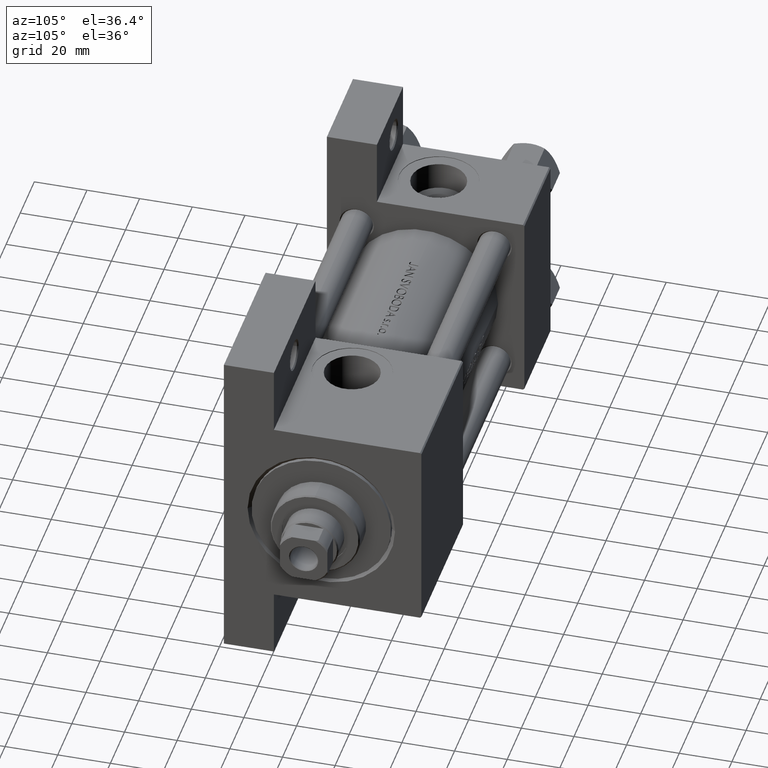
[diagram: clean part render]
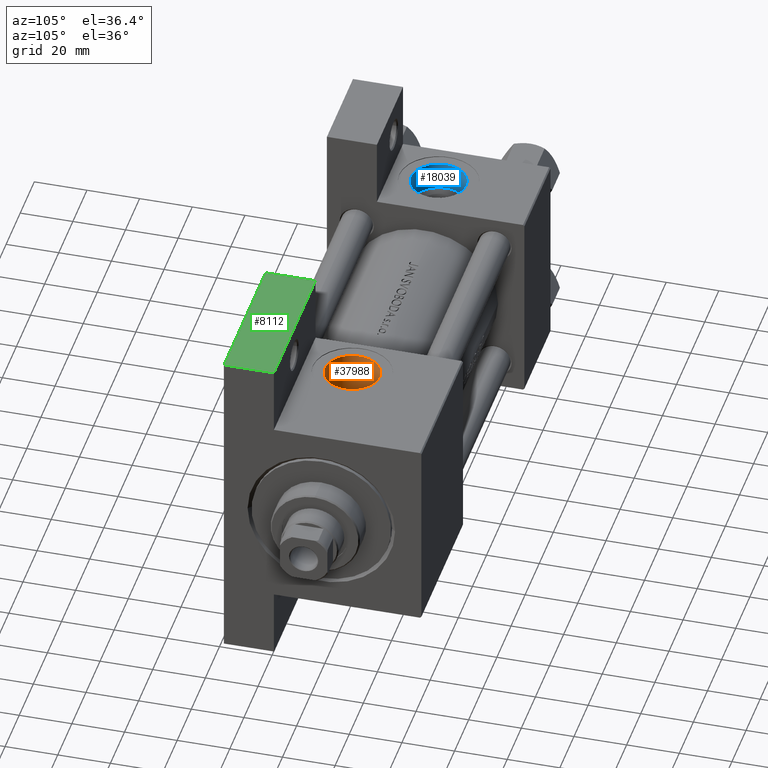
[diagram: same view with three faces highlighted in distinct colors, each labeled with its STEP entity id]
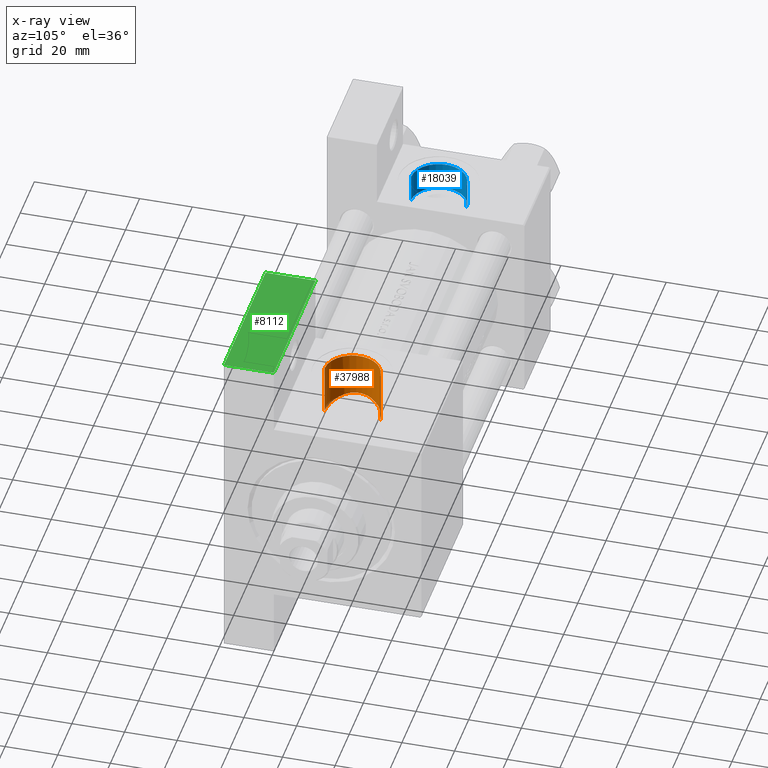
[diagram: x-ray of the same camera — body ghosted, the three highlighted faces saturated]
A machine part, auxiliary view with three faces highlighted in distinct colors.
The next image is the same camera in x-ray (body ghosted, the three faces saturated) — at least one of them is partly hidden behind the body in this view.
Their STEP definitions:

[orange] entity #37988 — the highlighted cylindrical surface (edge-blend (fillet) strip) has radius 10.48 mm, axis along (-0, -0, 1).
#439 = VERTEX_POINT ( 'NONE', #42049 ) ;
#555 = FACE_OUTER_BOUND ( 'NONE', #41556, .T. ) ;
#688 = CARTESIAN_POINT ( 'NONE',  ( 133.3809730746911839, -18.99918516550075864, 7.203644680487137464 ) ) ;
#1486 = DIRECTION ( 'NONE',  ( -0.000000000000000000, -1.000000000000000000, -8.673617379884036705E-17 ) ) ;
#1791 = CARTESIAN_POINT ( 'NONE',  ( 130.8085289422961637, -20.28709306372374144, 2.466525892830136346 ) ) ;
#2284 = CARTESIAN_POINT ( 'NONE',  ( 130.8700277560726875, -20.38347105376920254, -2.708475799773472747 ) ) ;
#2321 = CARTESIAN_POINT ( 'NONE',  ( 141.0000000000000000, -17.31154528053461306, 10.47999999999999154 ) ) ;
#3257 = CARTESIAN_POINT ( 'NONE',  ( 137.2712649677958154, -17.72514759185509092, 9.800086280978527853 ) ) ;
#3295 = LINE ( 'NONE', #19245, #16639 ) ;
#4042 = ORIENTED_EDGE ( 'NONE', *, *, #17309, .F. ) ;
#4175 = CARTESIAN_POINT ( 'NONE',  ( 137.5915143732480885, -17.65692230102833449, 9.916186572683967526 ) ) ;
#4714 = AXIS2_PLACEMENT_3D ( 'NONE', #18766, #15749, #30921 ) ;
#5529 = CARTESIAN_POINT ( 'NONE',  ( 131.0726434498571109, -20.29999609518734971, -3.376354653621504109 ) ) ;
#6261 = CARTESIAN_POINT ( 'NONE',  ( 133.8154452386611695, -19.21913497042929464, -7.637175280490517970 ) ) ;
#6512 = CARTESIAN_POINT ( 'NONE',  ( 138.5843153394801845, -18.05810427117003059, -10.20365670940337033 ) ) ;
#7728 = EDGE_CURVE ( 'NONE', #21464, #439, #10809, .T. ) ;
#8344 = VERTEX_POINT ( 'NONE', #2321 ) ;
#8421 = CARTESIAN_POINT ( 'NONE',  ( 132.7233602415656151, -19.29242988523072455, 6.437503504559506595 ) ) ;
#9519 = CARTESIAN_POINT ( 'NONE',  ( 131.6245642930965687, -19.83139452378803469, 4.733173975255226651 ) ) ;
#9764 = CARTESIAN_POINT ( 'NONE',  ( 136.3089432184008274, -18.47132649600307275, -9.396531025392599545 ) ) ;
#10010 = CARTESIAN_POINT ( 'NONE',  ( 131.1894306476518182, -20.25102656977830762, -3.701459934073187519 ) ) ;
#10252 = CARTESIAN_POINT ( 'NONE',  ( 140.2936450912457929, -17.90669148670408362, -10.47999999999997733 ) ) ;
#10809 = CIRCLE ( 'NONE', #38608, 10.47999999999998622 ) ;
#12058 = EDGE_CURVE ( 'NONE', #34973, #8344, #12662, .T. ) ;
#12141 = CARTESIAN_POINT ( 'NONE',  ( 140.3044545345210565, -17.31154528053462016, 10.47999999999999154 ) ) ;
#12662 = B_SPLINE_CURVE_WITH_KNOTS ( 'NONE', 3,
 ( #21716, #10252, #40594, #6512, #40108, #28446, #39608, #9764, #32403, #43855, #36132, #13013, #6261, #31912, #43606, #36369, #17013, #36868, #44107, #10010, #5529, #2284, #47109, #17506, #28201, #20736, #25197, #43365, #35876, #1791, #24706, #32163, #47363, #9519, #34771, #46245, #8421, #19641, #688, #25692, #18231, #23607, #19393, #3257, #4175, #33135, #44841, #15893, #12141, #41084 ),
 .UNSPECIFIED., .F., .F.,
 ( 4, 2, 2, 2, 2, 2, 2, 2, 2, 2, 2, 2, 2, 2, 2, 2, 2, 2, 2, 2, 2, 2, 2, 2, 4 ),
 ( 0.000000000000000000, 0.002085732680859664952, 0.003128599021289498079, 0.004171465361719330772, 0.006257198042578998760, 0.007300064383008865281, 0.008342930723438730933, 0.009385797063868595719, 0.01042866340429846224, 0.01251439608515819701, 0.01355726242558806353, 0.01460012876601793179, 0.01668586144687765616, 0.01772872778730751053, 0.01877159412773736838, 0.01981446046816722970, 0.02085732680859708754, 0.02294305948945683793, 0.02398592582988671312, 0.02502879217031658485, 0.02711452485117638728, 0.02920025753203618624, 0.03024312387246608919, 0.03128599021289599214, 0.03337172289375579803 ),
 .UNSPECIFIED. ) ;
#13013 = CARTESIAN_POINT ( 'NONE',  ( 134.0649927009445150, -19.13289277132431465, -7.864532804023773416 ) ) ;
#15749 = DIRECTION ( 'NONE',  ( -0.000000000000000000, -1.000000000000000000, -8.673617379884036705E-17 ) ) ;
#15893 = CARTESIAN_POINT ( 'NONE',  ( 139.6144639565822274, -17.35559248084098982, 10.41144764597006223 ) ) ;
#16639 = VECTOR ( 'NONE', #33657, 1000.000000000000000 ) ;
#17013 = CARTESIAN_POINT ( 'NONE',  ( 132.4759556616728844, -19.72067553347482871, -6.106406543856691904 ) ) ;
#17309 = EDGE_CURVE ( 'NONE', #34973, #439, #3295, .T. ) ;
#17506 = CARTESIAN_POINT ( 'NONE',  ( 130.5830884358183823, -20.49411676436529817, -1.342674851160320149 ) ) ;
#18231 = CARTESIAN_POINT ( 'NONE',  ( 134.6096037740494182, -18.50380750299995469, 8.333875197508971766 ) ) ;
#18766 = CARTESIAN_POINT ( 'NONE',  ( 141.0000000000000000, 37.50100000000000477, 9.974746723040443104E-15 ) ) ;
#18852 = CARTESIAN_POINT ( 'NONE',  ( 141.0000000000000000, -37.29999999999999716, 10.47999999999998977 ) ) ;
#19072 = CARTESIAN_POINT ( 'NONE',  ( 141.0000000000000000, -17.90669148670408362, -10.47999999999998089 ) ) ;
#19245 = CARTESIAN_POINT ( 'NONE',  ( 141.0000000000000000, 37.50100000000000477, -10.47999999999997556 ) ) ;
#19393 = CARTESIAN_POINT ( 'NONE',  ( 136.3335954883718557, -17.94904599600547712, 9.408192873974197568 ) ) ;
#19641 = CARTESIAN_POINT ( 'NONE',  ( 133.1545344758437750, -19.09783805311036886, 6.956499678098870376 ) ) ;
#20433 = CARTESIAN_POINT ( 'NONE',  ( 141.0000000000000000, 37.50100000000000477, 10.47999999999999687 ) ) ;
#20736 = CARTESIAN_POINT ( 'NONE',  ( 130.5217053303388468, -20.48332967077006828, 0.3975496392329738171 ) ) ;
#20976 = VECTOR ( 'NONE', #1486, 1000.000000000000000 ) ;
#21464 = VERTEX_POINT ( 'NONE', #18852 ) ;
#21716 = CARTESIAN_POINT ( 'NONE',  ( 141.0000000000000000, -17.90669148670408362, -10.47999999999998089 ) ) ;
#23607 = CARTESIAN_POINT ( 'NONE',  ( 135.7374011664607281, -18.12441261360090294, 9.088217275655875227 ) ) ;
#24706 = CARTESIAN_POINT ( 'NONE',  ( 130.8951751743529712, -20.23535558307757398, 2.800358647656735034 ) ) ;
#25197 = CARTESIAN_POINT ( 'NONE',  ( 130.5411270509842154, -20.46474067275494235, 0.7514081746990727284 ) ) ;
#25692 = CARTESIAN_POINT ( 'NONE',  ( 134.0925800491787072, -18.70257500022392350, 7.909780117561131085 ) ) ;
#27950 = ORIENTED_EDGE ( 'NONE', *, *, #31645, .T. ) ;
#28201 = CARTESIAN_POINT ( 'NONE',  ( 130.5169168091323684, -20.51137673509301607, -0.6516029565374288346 ) ) ;
#28446 = CARTESIAN_POINT ( 'NONE',  ( 137.5836453213384516, -18.21117968299171963, -9.913622529243996340 ) ) ;
#30921 = DIRECTION ( 'NONE',  ( 0.000000000000000000, 0.000000000000000000, -1.000000000000000000 ) ) ;
#31645 = EDGE_CURVE ( 'NONE', #8344, #21464, #39304, .T. ) ;
#31912 = CARTESIAN_POINT ( 'NONE',  ( 133.3390100190131591, -19.38994764023254547, -7.159155389767049904 ) ) ;
#32163 = CARTESIAN_POINT ( 'NONE',  ( 131.1012934303698785, -20.11685413836228520, 3.459060791729259066 ) ) ;
#32403 = CARTESIAN_POINT ( 'NONE',  ( 135.7109170005340673, -18.62590504215679488, -9.073138281531834437 ) ) ;
#33135 = CARTESIAN_POINT ( 'NONE',  ( 138.2485603725489227, -17.53617776474739642, 10.11820687614873826 ) ) ;
#33657 = DIRECTION ( 'NONE',  ( -0.000000000000000000, -1.000000000000000000, -8.673617379884036705E-17 ) ) ;
#34771 = CARTESIAN_POINT ( 'NONE',  ( 131.9495768395414927, -19.66322346998767046, 5.326983638994161829 ) ) ;
#34973 = VERTEX_POINT ( 'NONE', #19072 ) ;
#35876 = CARTESIAN_POINT ( 'NONE',  ( 130.6681735545247136, -20.37457923911944846, 1.789747077269118414 ) ) ;
#36132 = CARTESIAN_POINT ( 'NONE',  ( 134.5874752611917415, -18.96115153041447243, -8.296067076494246351 ) ) ;
#36369 = CARTESIAN_POINT ( 'NONE',  ( 132.6811096513063148, -19.63967553149033662, -6.382942706579978420 ) ) ;
#36868 = CARTESIAN_POINT ( 'NONE',  ( 131.9055833317326289, -19.95017549749733377, -5.252667561004574992 ) ) ;
#37076 = ORIENTED_EDGE ( 'NONE', *, *, #7728, .T. ) ;
#37637 = CYLINDRICAL_SURFACE ( 'NONE', #4714, 10.47999999999998622 ) ;
#37988 = ADVANCED_FACE ( 'NONE', ( #555 ), #37637, .F. ) ;
#38608 = AXIS2_PLACEMENT_3D ( 'NONE', #42826, #44261, #46831 ) ;
#39304 = LINE ( 'NONE', #20433, #20976 ) ;
#39608 = CARTESIAN_POINT ( 'NONE',  ( 137.2574528650404488, -18.27226487592814408, -9.794965196591777001 ) ) ;
#39693 = ORIENTED_EDGE ( 'NONE', *, *, #12058, .T. ) ;
#40108 = CARTESIAN_POINT ( 'NONE',  ( 138.2485181366844813, -18.10389330548456144, -10.11833674566095986 ) ) ;
#40594 = CARTESIAN_POINT ( 'NONE',  ( 139.6018487986952721, -17.94656342485971834, -10.40934886090304268 ) ) ;
#41084 = CARTESIAN_POINT ( 'NONE',  ( 141.0000000000000000, -17.31154528053461306, 10.47999999999999154 ) ) ;
#41556 = EDGE_LOOP ( 'NONE', ( #39693, #27950, #37076, #4042 ) ) ;
#42049 = CARTESIAN_POINT ( 'NONE',  ( 141.0000000000000000, -37.29999999999999716, -10.47999999999998266 ) ) ;
#42826 = CARTESIAN_POINT ( 'NONE',  ( 141.0000000000000000, -37.29999999999999716, 3.486794186713383443E-15 ) ) ;
#43365 = CARTESIAN_POINT ( 'NONE',  ( 130.6144618885458328, -20.41033060918976361, 1.446801902193837197 ) ) ;
#43606 = CARTESIAN_POINT ( 'NONE',  ( 133.1121230715595800, -19.47452367214849644, -6.908494176797778330 ) ) ;
#43855 = CARTESIAN_POINT ( 'NONE',  ( 134.8618195419076642, -18.87524337706392785, -8.501152861621342538 ) ) ;
#44107 = CARTESIAN_POINT ( 'NONE',  ( 131.5840202247433695, -20.08544715864210417, -4.651927720320701454 ) ) ;
#44261 = DIRECTION ( 'NONE',  ( 0.000000000000000000, -1.000000000000000000, -8.673617379884036705E-17 ) ) ;
#44841 = CARTESIAN_POINT ( 'NONE',  ( 138.5877247240034364, -17.48338598744718198, 10.20456839096644686 ) ) ;
#46245 = CARTESIAN_POINT ( 'NONE',  ( 132.5187940887308002, -19.38832963419614686, 6.165523076675712311 ) ) ;
#46831 = DIRECTION ( 'NONE',  ( 0.000000000000000000, 0.000000000000000000, -1.000000000000000000 ) ) ;
#47109 = CARTESIAN_POINT ( 'NONE',  ( 130.7848721841020563, -20.41767756798353517, -2.366995833931131887 ) ) ;
#47363 = CARTESIAN_POINT ( 'NONE',  ( 131.2215461673905281, -20.04967575897764220, 3.785508326117123623 ) ) ;

[blue] entity #18039 — the highlighted cylindrical surface (edge-blend (fillet) strip) has radius 10.48 mm, axis along (-0, -0, 1).
#24 = LINE ( 'NONE', #45094, #16272 ) ;
#2008 = CARTESIAN_POINT ( 'NONE',  ( 18.50000000000000000, -37.30000000000000426, -10.48000000000000398 ) ) ;
#3824 = VECTOR ( 'NONE', #12072, 1000.000000000000000 ) ;
#3914 = CARTESIAN_POINT ( 'NONE',  ( 18.50000000000000000, -37.30000000000000426, -3.452099717193846907E-15 ) ) ;
#4004 = EDGE_CURVE ( 'NONE', #42585, #39173, #24, .T. ) ;
#7010 = DIRECTION ( 'NONE',  ( -0.000000000000000000, -1.000000000000000000, -8.673617379884036705E-17 ) ) ;
#7509 = DIRECTION ( 'NONE',  ( -0.000000000000000000, -1.000000000000000000, -8.673617379884036705E-17 ) ) ;
#7816 = AXIS2_PLACEMENT_3D ( 'NONE', #3914, #29593, #11398 ) ;
#11112 = AXIS2_PLACEMENT_3D ( 'NONE', #38332, #7010, #34346 ) ;
#11315 = ORIENTED_EDGE ( 'NONE', *, *, #14966, .T. ) ;
#11398 = DIRECTION ( 'NONE',  ( 0.000000000000000000, 0.000000000000000000, -1.000000000000000000 ) ) ;
#12072 = DIRECTION ( 'NONE',  ( -0.000000000000000000, -1.000000000000000000, -8.673617379884036705E-17 ) ) ;
#13000 = ORIENTED_EDGE ( 'NONE', *, *, #15470, .F. ) ;
#14013 = VERTEX_POINT ( 'NONE', #2008 ) ;
#14740 = CYLINDRICAL_SURFACE ( 'NONE', #11112, 10.48000000000000043 ) ;
#14966 = EDGE_CURVE ( 'NONE', #39173, #14013, #21341, .T. ) ;
#15041 = EDGE_CURVE ( 'NONE', #42585, #44429, #41970, .T. ) ;
#15470 = EDGE_CURVE ( 'NONE', #44429, #14013, #31236, .T. ) ;
#16272 = VECTOR ( 'NONE', #7509, 1000.000000000000000 ) ;
#18039 = ADVANCED_FACE ( 'NONE', ( #37350 ), #14740, .F. ) ;
#19319 = CARTESIAN_POINT ( 'NONE',  ( 18.50000000000000000, -26.60000000000000497, -10.48000000000000220 ) ) ;
#20115 = DIRECTION ( 'NONE',  ( 0.000000000000000000, 0.000000000000000000, -1.000000000000000000 ) ) ;
#21341 = CIRCLE ( 'NONE', #7816, 10.48000000000000043 ) ;
#23707 = AXIS2_PLACEMENT_3D ( 'NONE', #38502, #45745, #20115 ) ;
#25859 = EDGE_LOOP ( 'NONE', ( #36906, #39210, #11315, #13000 ) ) ;
#29593 = DIRECTION ( 'NONE',  ( 0.000000000000000000, -1.000000000000000000, -8.673617379884036705E-17 ) ) ;
#31236 = LINE ( 'NONE', #19319, #3824 ) ;
#34346 = DIRECTION ( 'NONE',  ( 0.000000000000000000, 0.000000000000000000, -1.000000000000000000 ) ) ;
#36361 = CARTESIAN_POINT ( 'NONE',  ( 18.50000000000000000, -26.60000000000000497, -10.48000000000000220 ) ) ;
#36906 = ORIENTED_EDGE ( 'NONE', *, *, #15041, .F. ) ;
#37350 = FACE_OUTER_BOUND ( 'NONE', #25859, .T. ) ;
#38051 = CARTESIAN_POINT ( 'NONE',  ( 18.50000000000000000, -26.60000000000000497, 10.47999999999999865 ) ) ;
#38332 = CARTESIAN_POINT ( 'NONE',  ( 18.50000000000000000, -26.60000000000000497, -2.524022657546255111E-15 ) ) ;
#38502 = CARTESIAN_POINT ( 'NONE',  ( 18.50000000000000000, -26.60000000000000497, -2.524022657546255111E-15 ) ) ;
#39173 = VERTEX_POINT ( 'NONE', #42848 ) ;
#39210 = ORIENTED_EDGE ( 'NONE', *, *, #4004, .T. ) ;
#41970 = CIRCLE ( 'NONE', #23707, 10.48000000000000043 ) ;
#42585 = VERTEX_POINT ( 'NONE', #38051 ) ;
#42848 = CARTESIAN_POINT ( 'NONE',  ( 18.50000000000000000, -37.30000000000000426, 10.47999999999999687 ) ) ;
#44429 = VERTEX_POINT ( 'NONE', #36361 ) ;
#45094 = CARTESIAN_POINT ( 'NONE',  ( 18.50000000000000000, -26.60000000000000497, 10.47999999999999865 ) ) ;
#45745 = DIRECTION ( 'NONE',  ( 0.000000000000000000, -1.000000000000000000, -8.673617379884036705E-17 ) ) ;

[green] entity #8112 — the highlighted planar face has unit normal (-0, 0, 1).
#1654 = EDGE_CURVE ( 'NONE', #26517, #36268, #37783, .T. ) ;
#1832 = CARTESIAN_POINT ( 'NONE',  ( 123.9999999999999858, -63.50000000000000000, -18.50000000000000000 ) ) ;
#2033 = AXIS2_PLACEMENT_3D ( 'NONE', #1832, #13051, #17052 ) ;
#4168 = EDGE_CURVE ( 'NONE', #18991, #26517, #9968, .T. ) ;
#4903 = EDGE_CURVE ( 'NONE', #18991, #40398, #27167, .T. ) ;
#7332 = DIRECTION ( 'NONE',  ( 0.000000000000000000, 0.000000000000000000, -1.000000000000000000 ) ) ;
#7441 = CARTESIAN_POINT ( 'NONE',  ( 123.9999999999999858, -63.50000000000000000, -18.50000000000000000 ) ) ;
#8112 = ADVANCED_FACE ( 'NONE', ( #8822 ), #28241, .T. ) ;
#8822 = FACE_OUTER_BOUND ( 'NONE', #47362, .T. ) ;
#9339 = ORIENTED_EDGE ( 'NONE', *, *, #12555, .F. ) ;
#9968 = LINE ( 'NONE', #14433, #45677 ) ;
#10130 = VECTOR ( 'NONE', #21055, 1000.000000000000000 ) ;
#10447 = DIRECTION ( 'NONE',  ( -1.000000000000000000, 4.704334850106594808E-16, -0.000000000000000000 ) ) ;
#11705 = ORIENTED_EDGE ( 'NONE', *, *, #4168, .T. ) ;
#12223 = CARTESIAN_POINT ( 'NONE',  ( 183.0000000000000000, -63.50000000000002842, -18.50000000000000000 ) ) ;
#12555 = EDGE_CURVE ( 'NONE', #40398, #36268, #47427, .T. ) ;
#13051 = DIRECTION ( 'NONE',  ( -4.704334850106594808E-16, -1.000000000000000000, 0.000000000000000000 ) ) ;
#14433 = CARTESIAN_POINT ( 'NONE',  ( 123.9999999999999858, -63.50000000000000000, -18.50000000000000000 ) ) ;
#14567 = CARTESIAN_POINT ( 'NONE',  ( 183.0000000000000000, -63.50000000000002842, -18.50000000000000000 ) ) ;
#14597 = VECTOR ( 'NONE', #14683, 1000.000000000000000 ) ;
#14683 = DIRECTION ( 'NONE',  ( 0.000000000000000000, 0.000000000000000000, -1.000000000000000000 ) ) ;
#16154 = ORIENTED_EDGE ( 'NONE', *, *, #1654, .T. ) ;
#17052 = DIRECTION ( 'NONE',  ( 1.000000000000000000, -4.704334850106594808E-16, 0.000000000000000000 ) ) ;
#18991 = VERTEX_POINT ( 'NONE', #12223 ) ;
#21055 = DIRECTION ( 'NONE',  ( -1.000000000000000000, 4.704334850106594808E-16, -0.000000000000000000 ) ) ;
#21067 = VECTOR ( 'NONE', #7332, 1000.000000000000000 ) ;
#21536 = CARTESIAN_POINT ( 'NONE',  ( 123.9999999999999858, -63.50000000000000000, -37.50000000000000000 ) ) ;
#26517 = VERTEX_POINT ( 'NONE', #31917 ) ;
#27167 = LINE ( 'NONE', #14567, #21067 ) ;
#28241 = PLANE ( 'NONE',  #2033 ) ;
#29563 = ORIENTED_EDGE ( 'NONE', *, *, #4903, .F. ) ;
#31917 = CARTESIAN_POINT ( 'NONE',  ( 123.9999999999999858, -63.50000000000000000, -18.50000000000000000 ) ) ;
#36268 = VERTEX_POINT ( 'NONE', #43211 ) ;
#37783 = LINE ( 'NONE', #7441, #14597 ) ;
#38957 = CARTESIAN_POINT ( 'NONE',  ( 183.0000000000000000, -63.50000000000002842, -37.50000000000000000 ) ) ;
#40398 = VERTEX_POINT ( 'NONE', #38957 ) ;
#43211 = CARTESIAN_POINT ( 'NONE',  ( 123.9999999999999858, -63.50000000000000000, -37.50000000000000000 ) ) ;
#45677 = VECTOR ( 'NONE', #10447, 1000.000000000000000 ) ;
#47362 = EDGE_LOOP ( 'NONE', ( #9339, #29563, #11705, #16154 ) ) ;
#47427 = LINE ( 'NONE', #21536, #10130 ) ;